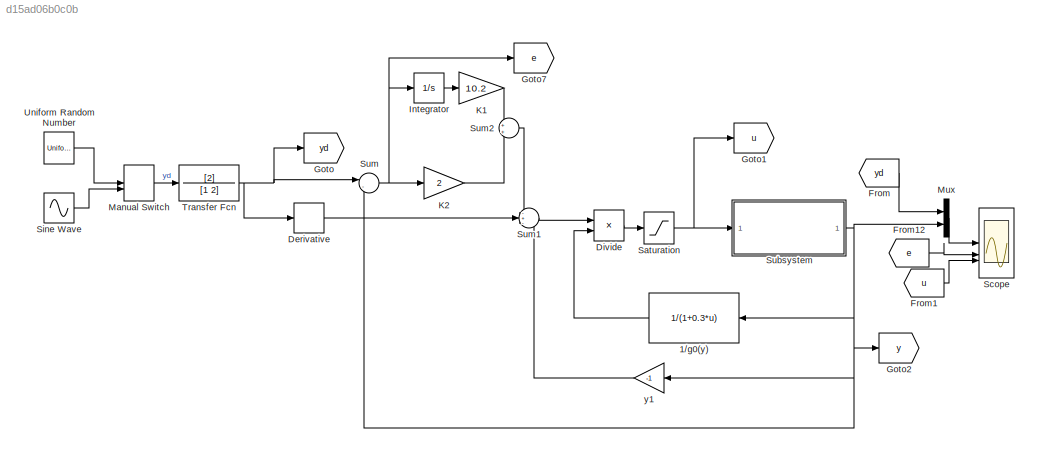
MODEL mdl_d15ad06b0c0b
KIND model
CONFIG AbsTol = auto
CONFIG EnableMultiTasking = on
CONFIG FixedStep = auto
CONFIG MaxStep = auto
CONFIG MinStep = auto
CONFIG RelTol = 1e-3
CONFIG SampleTimeConstraint = Unconstrained
CONFIG SolverName = ode45
CONFIG StartTime = 0.0
CONFIG StopTime = 100
BLOCK [Fcn] 1//g0(y)
  Expr = 1/(1+0.3*u)
  NameLocation = top
BLOCK [Derivative] Derivative
BLOCK [Product] Divide
  Inputs = **
BLOCK [From] From
  CloseFcn = tagdialog Close
  GotoTag = yd
BLOCK [From] From1
  CloseFcn = tagdialog Close
  GotoTag = u
BLOCK [From] From12
  CloseFcn = tagdialog Close
  GotoTag = e
BLOCK [Goto] Goto
  GotoTag = yd
BLOCK [Goto] Goto1
  GotoTag = u
BLOCK [Goto] Goto2
  GotoTag = y
BLOCK [Goto] Goto7
  GotoTag = e
BLOCK [Integrator] Integrator
BLOCK [Gain] K1
  Gain = 10.2
BLOCK [Gain] K2
  Gain = 2
BLOCK [ManualSwitch] Manual Switch
BLOCK [Mux] Mux
  DisplayOption = bar
  Inputs = 2
BLOCK [Saturate] Saturation
  LowerLimit = -10
  UpperLimit = 10
BLOCK [Scope] Scope
  ActiveDisplayYMaximum = 84.564171108734257
  ActiveDisplayYMinimum = -7.0047853797915387
  DataLoggingDecimateData = on
  DataLoggingDecimation = 1
  DataLoggingSaveFormat = Structure With Time
  Floating = off
  GraphicalSettings = {"Style":{"BackgroundColor":[0.12941176470588237,0.12941176470588237,0.12941176470588237],"AxesColor":[0.07058823529411765,0.07058823529411765,0.07058823529411765],"LabelsColor":[0.8509803921568627,0.8509803921568627,0.8509803921568627],"PreserveColors":false,"Visible":[true,true,true,true],"LineStyle":["-","-","-","-"],"LineWidth":[1.5,1.5,1.5,1.5],"BarWidth":[0.9,0.9,0.9,0.9],"LineColor":["auto"...<+3026ch>
  LayoutDimensionsString = [3 1]
  MultipleDisplayCache = [{"MaxYLimMag":64.572006100474539,"MaxYLimReal":84.564171108734257,"MinYLimMag":0,"MinYLimReal":-7.0047853797915387,"PlotAsMagnitudePhase":false,"ShowGrid":true,"ShowLegend":true,"Title":"%<SignalLabel>","YLabel":""},{"MaxYLimMag":12.904481911927984,"MaxYLimReal":4.75853476865616,"MinYLimMag":0,"MinYLimReal":-2.7806694163237062,"PlotAsMagnitudePhase":false,"ShowGrid":true,"ShowLegend":true,"Title"...<+247ch>
  NumInputPorts = 3
  ScopeFrameLocation = window
  ShowLegend = on
  TimeSpan = 100
  WasSavedAsWebScope = on
  WindowPosition = [1.000000,49.000000,1536.000000,793.000000,]
BLOCK [Sin] Sine Wave
  Amplitude = 20
  Bias = 40
  SampleTime = 0
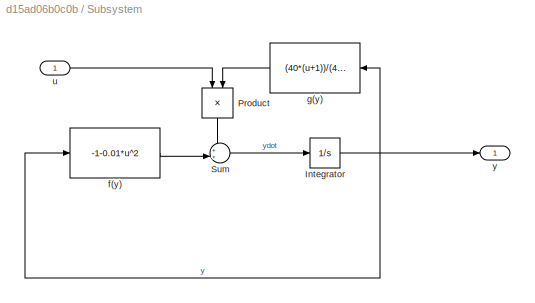
BLOCK [SubSystem] Subsystem
BLOCK [Integrator] Subsystem/Integrator
BLOCK [Product] Subsystem/Product
  NameLocation = left
  RndMeth = Zero
BLOCK [Sum] Subsystem/Sum
  Inputs = ++|
BLOCK [Fcn] Subsystem/f(y)
  Expr = -1-0.01*u^2
BLOCK [Fcn] Subsystem/g(y)
  Expr = (40*(u+1))/(40+u)
  NameLocation = top
BLOCK [Inport] Subsystem/u
BLOCK [Outport] Subsystem/y
BLOCK [Sum] Sum
  Inputs = |-+
BLOCK [Sum] Sum1
  Inputs = -+-
BLOCK [Sum] Sum2
BLOCK [TransferFcn] Transfer Fcn
  Denominator = [1 2]
  Numerator = [2]
BLOCK [UniformRandomNumber] Uniform Random Number
  Maximum = 60
  Minimum = 20
  SampleTime = 10
BLOCK [Gain] y1
  Gain = -1
  NameLocation = top
LINE 1//g0(y):1 -> Divide:2
LINE Derivative:1 -> Sum1:2
LINE Divide:1 -> Saturation:1
LINE From12:1 -> Scope:2
LINE From1:1 -> Scope:3
LINE From:1 -> Mux:1
LINE Integrator:1 -> K1:1
LINE K1:1 -> Sum2:1
LINE K2:1 -> Sum2:2
LINE Manual Switch:1 -> Transfer Fcn:1
LINE Mux:1 -> Scope:1
NET Saturation:1 -> Goto1:1, Subsystem:1
LINE Sine Wave:1 -> Manual Switch:2
NET Subsystem/Integrator:1 -> Subsystem/f(y):1, Subsystem/g(y):1, Subsystem/y:1
LINE Subsystem/Product:1 -> Subsystem/Sum:1
LINE Subsystem/Sum:1 -> Subsystem/Integrator:1
LINE Subsystem/f(y):1 -> Subsystem/Sum:2
LINE Subsystem/g(y):1 -> Subsystem/Product:2
LINE Subsystem/u:1 -> Subsystem/Product:1
NET Subsystem:1 -> 1//g0(y):1, Goto2:1, Mux:2, Sum:2, y1:1
LINE Sum1:1 -> Divide:1
LINE Sum2:1 -> Sum1:1
NET Sum:1 -> Goto7:1, Integrator:1, K2:1
NET Transfer Fcn:1 -> Derivative:1, Goto:1, Sum:1
LINE Uniform Random Number:1 -> Manual Switch:1
LINE y1:1 -> Sum1:3
note: NET lines group one-source signal fan-out (src -> all destinations, sorted); 1:1 wires keep LINE
